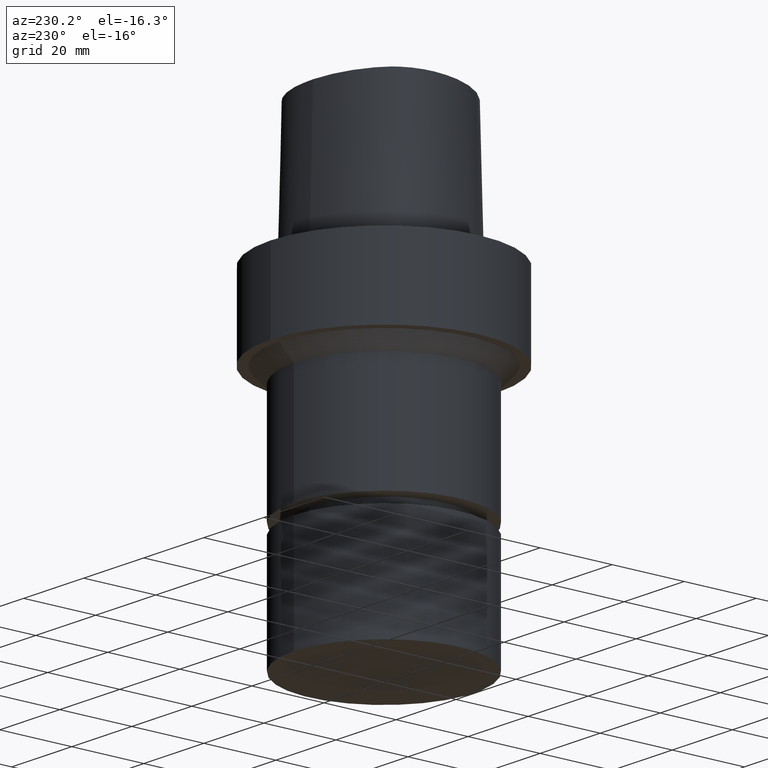
[diagram: clean part render]
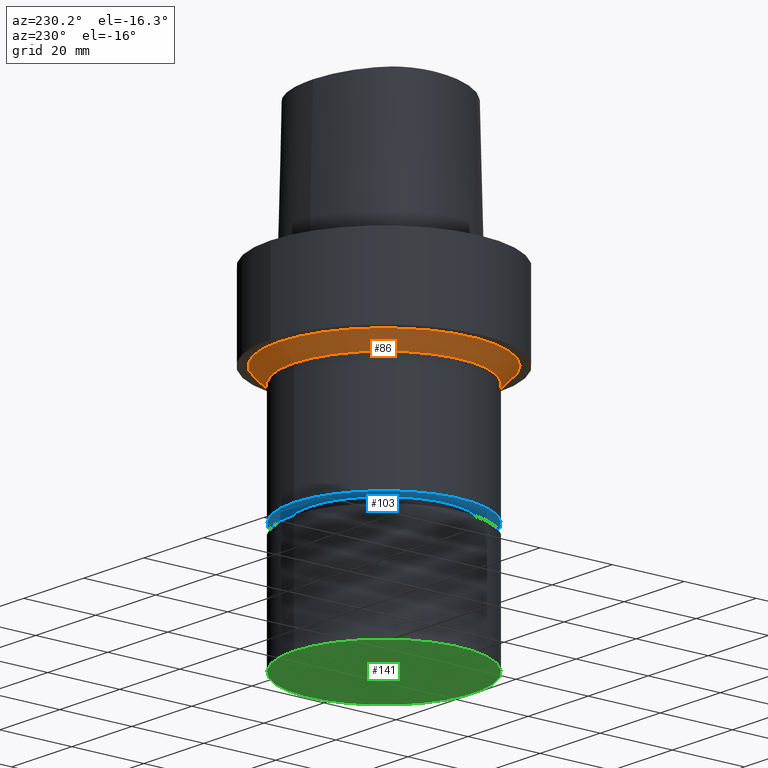
[diagram: same view with three faces highlighted in distinct colors, each labeled with its STEP entity id]
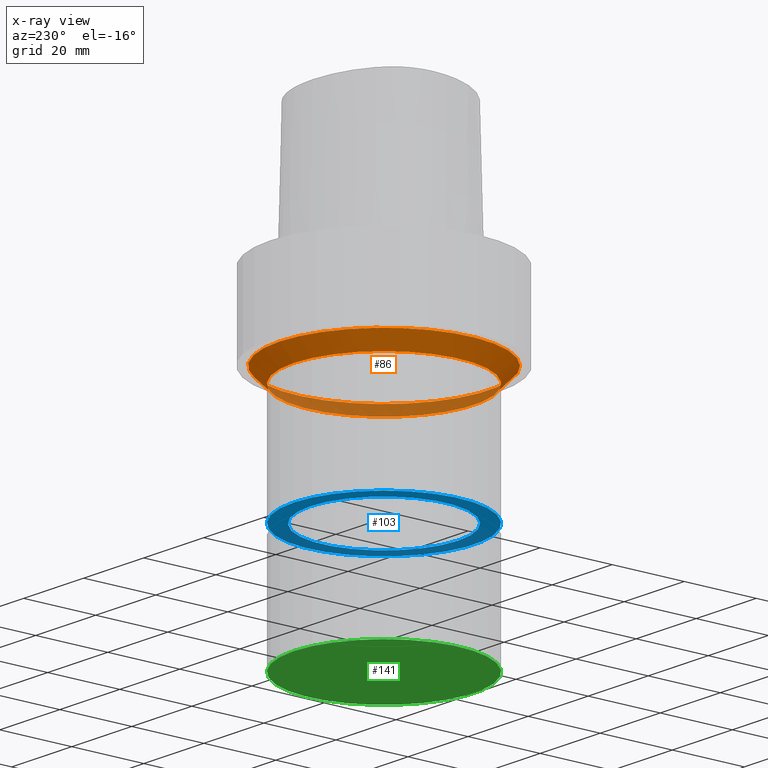
[diagram: x-ray of the same camera — body ghosted, the three highlighted faces saturated]
A machine part, auxiliary view with three faces highlighted in distinct colors.
The next image is the same camera in x-ray (body ghosted, the three faces saturated) — at least one of them is partly hidden behind the body in this view.
Their STEP definitions:

[orange] entity #86 — the highlighted conical surface has half-angle 45 deg.
#86=ADVANCED_FACE('Unnamed[1]',(#213,#214),#215,.T.);
#132=EDGE_CURVE('Unnamed[1]',#282,#282,#283,.T.);
#154=EDGE_CURVE('Unnamed[1]',#311,#311,#312,.T.);
#213=FACE_BOUND('',#392,.T.);
#214=FACE_BOUND('',#393,.T.);
#215=CONICAL_SURFACE('',#394,27.0,0.785398163397451);
#282=VERTEX_POINT('',#618);
#283=CIRCLE('',#619,25.0);
#311=VERTEX_POINT('',#687);
#312=CIRCLE('',#688,29.0);
#392=EDGE_LOOP('',(#756));
#393=EDGE_LOOP('',(#757));
#394=AXIS2_PLACEMENT_3D('',#758,#759,#760);
#618=CARTESIAN_POINT('',(1.59204083889159E-015,25.0,-26.0000000000006));
#619=AXIS2_PLACEMENT_3D('',#832,#833,#834);
#687=CARTESIAN_POINT('',(1.34711147906212E-015,29.0,-22.0000000000006));
#688=AXIS2_PLACEMENT_3D('',#859,#860,#861);
#756=ORIENTED_EDGE('',*,*,#132,.F.);
#757=ORIENTED_EDGE('',*,*,#154,.T.);
#758=CARTESIAN_POINT('',(1.46957615897686E-015,2.93915231795372E-015,-24.0000000000006));
#759=DIRECTION('',(-6.12323399573677E-017,-1.22464679914735E-016,1.0));
#760=DIRECTION('',(-1.23259516440783E-032,1.0,1.22464679914735E-016));
#832=CARTESIAN_POINT('',(1.59204083889159E-015,3.18408167778319E-015,-26.0000000000006));
#833=DIRECTION('',(6.12323399573677E-017,1.22464679914735E-016,-1.0));
#834=DIRECTION('',(-1.23259516440783E-032,1.0,1.22464679914735E-016));
#859=CARTESIAN_POINT('',(1.34711147906212E-015,2.69422295812425E-015,-22.0000000000006));
#860=DIRECTION('',(6.12323399573677E-017,1.22464679914735E-016,-1.0));
#861=DIRECTION('',(-1.23259516440783E-032,1.0,1.22464679914735E-016));

[blue] entity #103 — the highlighted planar face has unit normal (0, 0, -1).
#73=EDGE_CURVE('Unnamed[1]',#192,#192,#193,.T.);
#103=ADVANCED_FACE('Unnamed[1]',(#239,#240),#241,.T.);
#115=EDGE_CURVE('Unnamed[1]',#257,#257,#258,.T.);
#192=VERTEX_POINT('',#350);
#193=CIRCLE('',#351,20.4999999999911);
#239=FACE_BOUND('',#498,.T.);
#240=FACE_OUTER_BOUND('',#499,.T.);
#241=PLANE('',#500);
#257=VERTEX_POINT('',#520);
#258=CIRCLE('',#521,25.0);
#350=CARTESIAN_POINT('',(3.49025302591328E-015,20.4999999999911,-57.0001575694042));
#351=AXIS2_PLACEMENT_3D('',#737,#738,#739);
#498=EDGE_LOOP('',(#780));
#499=EDGE_LOOP('',(#781));
#500=AXIS2_PLACEMENT_3D('',#782,#783,#784);
#520=CARTESIAN_POINT('',(3.49025302591325E-015,25.0,-57.0001575694037));
#521=AXIS2_PLACEMENT_3D('',#798,#799,#800);
#737=CARTESIAN_POINT('',(3.49025302591328E-015,6.98050605182656E-015,-57.0001575694042));
#738=DIRECTION('',(6.12323399573677E-017,1.22464679914735E-016,-1.0));
#739=DIRECTION('',(-1.23259516440783E-032,1.0,1.22464679914735E-016));
#780=ORIENTED_EDGE('',*,*,#73,.F.);
#781=ORIENTED_EDGE('',*,*,#115,.T.);
#782=CARTESIAN_POINT('',(3.49025302591327E-015,22.7499999999955,-57.000157569404));
#783=DIRECTION('',(6.12323399573677E-017,1.12230318544065E-013,-1.0));
#784=DIRECTION('',(-6.87695217134461E-030,1.0,1.12230318544065E-013));
#798=CARTESIAN_POINT('',(3.49025302591325E-015,6.9805060518265E-015,-57.0001575694037));
#799=DIRECTION('',(6.12323399573677E-017,1.22464679914735E-016,-1.0));
#800=DIRECTION('',(-1.23259516440783E-032,1.0,1.22464679914735E-016));

[green] entity #141 — the highlighted planar face has unit normal (0, 0, -1).
#141=ADVANCED_FACE('Unnamed[1]',(#294),#295,.T.);
#165=EDGE_CURVE('Unnamed[1]',#325,#325,#326,.T.);
#294=FACE_OUTER_BOUND('',#632,.T.);
#295=PLANE('',#633);
#325=VERTEX_POINT('',#722);
#326=CIRCLE('',#723,25.0);
#632=EDGE_LOOP('',(#843));
#633=AXIS2_PLACEMENT_3D('',#844,#845,#846);
#722=CARTESIAN_POINT('',(5.51091059616309E-015,25.0,-90.0));
#723=AXIS2_PLACEMENT_3D('',#872,#873,#874);
#843=ORIENTED_EDGE('',*,*,#165,.T.);
#844=CARTESIAN_POINT('',(5.51091059616309E-015,12.5,-90.0));
#845=DIRECTION('',(6.12323399573677E-017,1.22464679914735E-016,-1.0));
#846=DIRECTION('',(-1.23259516440783E-032,1.0,1.22464679914735E-016));
#872=CARTESIAN_POINT('',(5.51091059616309E-015,1.10218211923262E-014,-90.0));
#873=DIRECTION('',(6.12323399573677E-017,1.22464679914735E-016,-1.0));
#874=DIRECTION('',(-1.23259516440783E-032,1.0,1.22464679914735E-016));